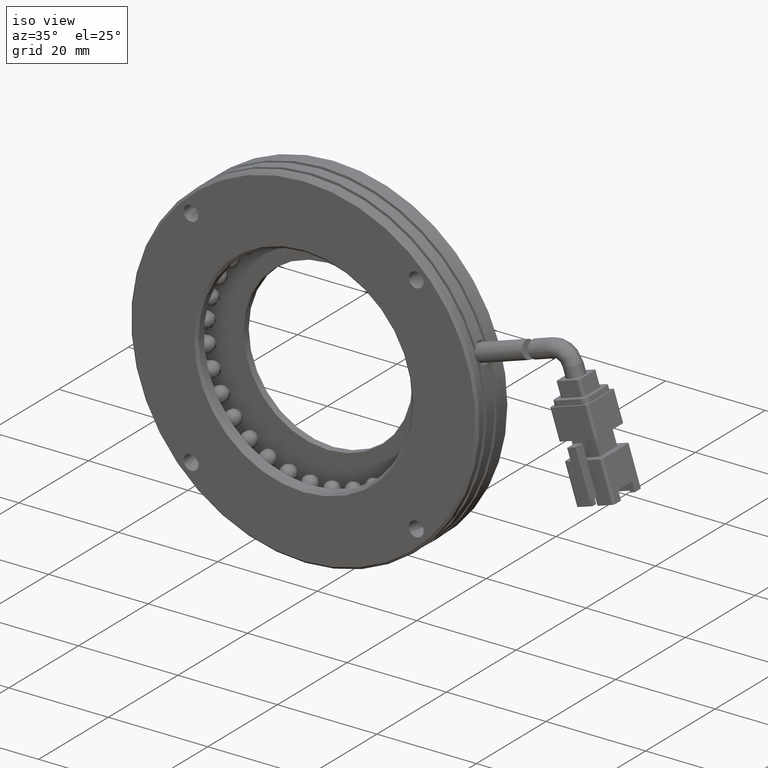
[diagram: clean part render]
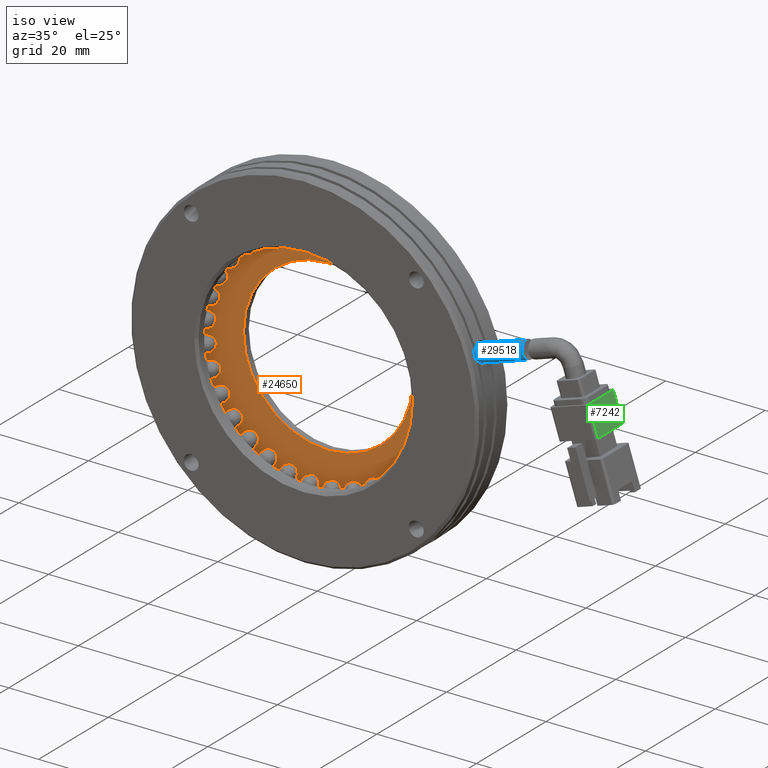
[diagram: same view with three faces highlighted in distinct colors, each labeled with its STEP entity id]
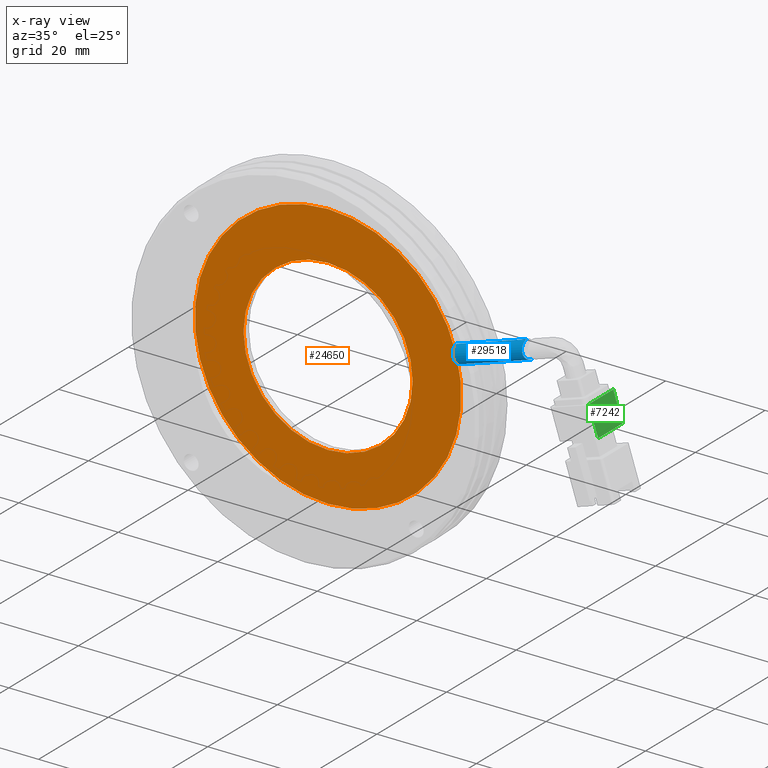
[diagram: x-ray of the same camera — body ghosted, the three highlighted faces saturated]
A machine part, iso view with three faces highlighted in distinct colors.
The next image is the same camera in x-ray (body ghosted, the three faces saturated) — at least one of them is partly hidden behind the body in this view.
Their STEP definitions:

[orange] entity #24650 — the highlighted planar face has unit normal (0, 1, 0).
#608 = EDGE_LOOP ( 'NONE', ( #2378, #2992 ) ) ;
#2374 = EDGE_CURVE ( 'NONE', #39780, #20441, #25973, .T. ) ;
#2378 = ORIENTED_EDGE ( 'NONE', *, *, #37890, .F. ) ;
#2992 = ORIENTED_EDGE ( 'NONE', *, *, #28571, .F. ) ;
#4159 = EDGE_LOOP ( 'NONE', ( #12095, #36094 ) ) ;
#4521 = VERTEX_POINT ( 'NONE', #29753 ) ;
#5739 = AXIS2_PLACEMENT_3D ( 'NONE', #24487, #5831, #27602 ) ;
#5831 = DIRECTION ( 'NONE',  ( 0.0000000000000000000, 1.000000000000000000, 0.0000000000000000000 ) ) ;
#10106 = CARTESIAN_POINT ( 'NONE',  ( -5.709292144904340600, 11.26020291540426400, 16.99999999999997900 ) ) ;
#11945 = PLANE ( 'NONE',  #5739 ) ;
#12095 = ORIENTED_EDGE ( 'NONE', *, *, #2374, .T. ) ;
#12485 = DIRECTION ( 'NONE',  ( 0.0000000000000000000, 1.000000000000000000, 0.0000000000000000000 ) ) ;
#12673 = CARTESIAN_POINT ( 'NONE',  ( -5.709292144904342300, 11.26020291540426400, -2.081668171172168500E-014 ) ) ;
#14957 = CARTESIAN_POINT ( 'NONE',  ( -5.709292144904342300, 11.26020291540426400, -2.081668171172168500E-014 ) ) ;
#15790 = DIRECTION ( 'NONE',  ( 0.0000000000000000000, 0.0000000000000000000, -1.000000000000000000 ) ) ;
#16258 = CARTESIAN_POINT ( 'NONE',  ( -5.709292144904338800, 11.26020291540426400, 26.79999999999997900 ) ) ;
#16891 = AXIS2_PLACEMENT_3D ( 'NONE', #31146, #12485, #34284 ) ;
#17404 = CIRCLE ( 'NONE', #39424, 17.00000000000000000 ) ;
#18082 = DIRECTION ( 'NONE',  ( 0.0000000000000000000, 0.0000000000000000000, -1.000000000000000000 ) ) ;
#20441 = VERTEX_POINT ( 'NONE', #10106 ) ;
#20762 = EDGE_CURVE ( 'NONE', #20441, #39780, #17404, .T. ) ;
#21658 = DIRECTION ( 'NONE',  ( 0.0000000000000000000, 0.0000000000000000000, -1.000000000000000000 ) ) ;
#21782 = DIRECTION ( 'NONE',  ( 0.0000000000000000000, 1.000000000000000000, 0.0000000000000000000 ) ) ;
#22052 = CARTESIAN_POINT ( 'NONE',  ( -5.709292144904342300, 11.26020291540426400, -2.081668171172168500E-014 ) ) ;
#23281 = VERTEX_POINT ( 'NONE', #16258 ) ;
#24473 = FACE_OUTER_BOUND ( 'NONE', #608, .T. ) ;
#24487 = CARTESIAN_POINT ( 'NONE',  ( -29.70929214490434600, 11.26020291540426400, -2.081668171172168500E-014 ) ) ;
#24650 = ADVANCED_FACE ( 'NONE', ( #24473, #25460 ), #11945, .F. ) ;
#25460 = FACE_BOUND ( 'NONE', #4159, .T. ) ;
#25973 = CIRCLE ( 'NONE', #31549, 17.00000000000000000 ) ;
#27602 = DIRECTION ( 'NONE',  ( 0.0000000000000000000, -0.0000000000000000000, 1.000000000000000000 ) ) ;
#28571 = EDGE_CURVE ( 'NONE', #23281, #4521, #36526, .T. ) ;
#29753 = CARTESIAN_POINT ( 'NONE',  ( -5.709292144904342300, 11.26020291540426400, -26.80000000000002200 ) ) ;
#31146 = CARTESIAN_POINT ( 'NONE',  ( -5.709292144904342300, 11.26020291540426400, -2.081668171172168500E-014 ) ) ;
#31544 = CARTESIAN_POINT ( 'NONE',  ( -5.709292144904342300, 11.26020291540426400, -17.00000000000002100 ) ) ;
#31549 = AXIS2_PLACEMENT_3D ( 'NONE', #22052, #21782, #21658 ) ;
#33033 = CIRCLE ( 'NONE', #16891, 26.80000000000000100 ) ;
#34284 = DIRECTION ( 'NONE',  ( 0.0000000000000000000, 0.0000000000000000000, -1.000000000000000000 ) ) ;
#34458 = DIRECTION ( 'NONE',  ( 0.0000000000000000000, 1.000000000000000000, 0.0000000000000000000 ) ) ;
#36094 = ORIENTED_EDGE ( 'NONE', *, *, #20762, .T. ) ;
#36526 = CIRCLE ( 'NONE', #39033, 26.80000000000000100 ) ;
#36742 = DIRECTION ( 'NONE',  ( 0.0000000000000000000, 1.000000000000000000, 0.0000000000000000000 ) ) ;
#37890 = EDGE_CURVE ( 'NONE', #4521, #23281, #33033, .T. ) ;
#39033 = AXIS2_PLACEMENT_3D ( 'NONE', #12673, #34458, #15790 ) ;
#39424 = AXIS2_PLACEMENT_3D ( 'NONE', #14957, #36742, #18082 ) ;
#39780 = VERTEX_POINT ( 'NONE', #31544 ) ;

[blue] entity #29518 — the highlighted cylindrical surface (edge-blend (fillet) strip) has radius 1.75 mm, axis along (-0.9511, -0, -0.309).
#221 = CARTESIAN_POINT ( 'NONE',  ( 36.72435600610577900, 6.510318586919435500, 13.54560407926691900 ) ) ;
#340 = CARTESIAN_POINT ( 'NONE',  ( 36.33903773791102800, 8.260202915404274600, 15.50238946504246900 ) ) ;
#3137 = ORIENTED_EDGE ( 'NONE', *, *, #5247, .T. ) ;
#3337 = CARTESIAN_POINT ( 'NONE',  ( 36.60175035152810400, 6.521611991579599800, 13.98946060272385900 ) ) ;
#5247 = EDGE_CURVE ( 'NONE', #19025, #35095, #23647, .T. ) ;
#5968 = ORIENTED_EDGE ( 'NONE', *, *, #15508, .F. ) ;
#6035 = EDGE_CURVE ( 'NONE', #8239, #19025, #15686, .T. ) ;
#6301 = CARTESIAN_POINT ( 'NONE',  ( 37.35238691673917100, 7.806023278165579200, 12.21052284659716300 ) ) ;
#6437 = CARTESIAN_POINT ( 'NONE',  ( 36.52657186722137800, 6.599357825048467200, 14.31553269713498700 ) ) ;
#6508 = AXIS2_PLACEMENT_3D ( 'NONE', #20636, #23653, #39396 ) ;
#7446 = VECTOR ( 'NONE', #21072, 1000.000000000000100 ) ;
#7602 = LINE ( 'NONE', #37968, #39697 ) ;
#7743 = B_SPLINE_CURVE_WITH_KNOTS ( 'NONE', 3,
 ( #21805, #12422, #24970, #6301, #28065, #9444, #31202, #12534, #34334, #15670, #37459, #18783, #221, #21936, #3337, #25105, #6437, #28199, #9574, #31350, #12676, #34461, #15797, #37596, #18913, #340 ),
 .UNSPECIFIED., .F., .F.,
 ( 4, 2, 2, 2, 2, 2, 2, 2, 2, 2, 2, 2, 4 ),
 ( 0.005490571999675049900, 0.005833718808239137000, 0.006176865616803224100, 0.006520012425367311200, 0.006863159233931397400, 0.007549452851059569900, 0.008235746468187742400, 0.008578893276751825200, 0.008922040085315909700, 0.009608333702444077000, 0.009951480511008161500, 0.01029462731957224600, 0.01098092093670041700 ),
 .UNSPECIFIED. ) ;
#8239 = VERTEX_POINT ( 'NONE', #35651 ) ;
#9444 = CARTESIAN_POINT ( 'NONE',  ( 37.28371489368260000, 7.483322079435509100, 12.31608354598104100 ) ) ;
#9574 = CARTESIAN_POINT ( 'NONE',  ( 36.43177932673596300, 6.859428774538495000, 14.82147484758573900 ) ) ;
#12422 = CARTESIAN_POINT ( 'NONE',  ( 37.38529353114712700, 8.144126648416756700, 12.16222079472872900 ) ) ;
#12534 = CARTESIAN_POINT ( 'NONE',  ( 37.18831928160720000, 7.193327799290734100, 12.47478184292934400 ) ) ;
#12676 = CARTESIAN_POINT ( 'NONE',  ( 36.38500504170504300, 7.190315544294240800, 15.13831572019557600 ) ) ;
#13039 = ORIENTED_EDGE ( 'NONE', *, *, #20286, .T. ) ;
#13913 = CARTESIAN_POINT ( 'NONE',  ( 22.82240334395002900, 8.260202915404274600, 9.270509831248427100 ) ) ;
#14681 = CARTESIAN_POINT ( 'NONE',  ( 41.30275392969692700, 8.260202915404274600, 17.11519862226390700 ) ) ;
#15508 = EDGE_CURVE ( 'NONE', #15520, #35095, #7602, .T. ) ;
#15520 = VERTEX_POINT ( 'NONE', #16322 ) ;
#15670 = CARTESIAN_POINT ( 'NONE',  ( 37.03719705705669400, 6.862651531761057000, 12.75622790100125700 ) ) ;
#15686 = LINE ( 'NONE', #14681, #7446 ) ;
#15797 = CARTESIAN_POINT ( 'NONE',  ( 36.36077572499959100, 7.482101088893479400, 15.32195030346228200 ) ) ;
#16322 = CARTESIAN_POINT ( 'NONE',  ( 37.38529353114712000, 8.260202915404272900, 12.16222079472872500 ) ) ;
#17035 = DIRECTION ( 'NONE',  ( 0.3090169943749487800, 0.0000000000000000000, -0.9510565162951533100 ) ) ;
#18783 = CARTESIAN_POINT ( 'NONE',  ( 36.79792555005476400, 6.556725872196850900, 13.32644586666193700 ) ) ;
#18913 = CARTESIAN_POINT ( 'NONE',  ( 36.33903773791102100, 8.028106546004591900, 15.50238946504246800 ) ) ;
#19025 = VERTEX_POINT ( 'NONE', #34836 ) ;
#19554 = EDGE_LOOP ( 'NONE', ( #13039, #40009, #3137, #5968 ) ) ;
#20286 = EDGE_CURVE ( 'NONE', #15520, #8239, #7743, .T. ) ;
#20636 = CARTESIAN_POINT ( 'NONE',  ( 41.84353366985308800, 8.260202915404274600, 15.45084971874738900 ) ) ;
#21072 = DIRECTION ( 'NONE',  ( -0.9510565162951533100, -5.175640566343689800E-031, -0.3090169943749482300 ) ) ;
#21805 = CARTESIAN_POINT ( 'NONE',  ( 37.38529353114712000, 8.260202915404272900, 12.16222079472872500 ) ) ;
#21936 = CARTESIAN_POINT ( 'NONE',  ( 36.63081237381874200, 6.510145412648808100, 13.87670563019659500 ) ) ;
#23226 = CYLINDRICAL_SURFACE ( 'NONE', #6508, 1.749999999999998900 ) ;
#23647 = CIRCLE ( 'NONE', #33827, 1.749999999999999800 ) ;
#23653 = DIRECTION ( 'NONE',  ( -0.9510565162951534200, -5.175640566343689800E-031, -0.3090169943749482300 ) ) ;
#24970 = CARTESIAN_POINT ( 'NONE',  ( 37.37847244659075600, 8.030119444077746100, 12.17202583018128200 ) ) ;
#25105 = CARTESIAN_POINT ( 'NONE',  ( 36.54979637701208600, 6.566301789970987500, 14.20835022921537100 ) ) ;
#25117 = CARTESIAN_POINT ( 'NONE',  ( 23.36318308410618600, 8.260202915404274600, 7.606160927731910000 ) ) ;
#25633 = DIRECTION ( 'NONE',  ( -0.9510565162951533100, -5.175640566343689800E-031, -0.3090169943749482300 ) ) ;
#28065 = CARTESIAN_POINT ( 'NONE',  ( 37.33280410560985300, 7.694751361463382900, 12.23971285089880600 ) ) ;
#28199 = CARTESIAN_POINT ( 'NONE',  ( 36.46348452523619700, 6.731159768639686000, 14.62977999914818400 ) ) ;
#29518 = ADVANCED_FACE ( 'NONE', ( #34425 ), #23226, .T. ) ;
#31202 = CARTESIAN_POINT ( 'NONE',  ( 37.25439642110107700, 7.383101340561889700, 12.36297491285675100 ) ) ;
#31350 = CARTESIAN_POINT ( 'NONE',  ( 36.39515622102742000, 7.102460475205196700, 15.06565838354307000 ) ) ;
#33827 = AXIS2_PLACEMENT_3D ( 'NONE', #13913, #35698, #17035 ) ;
#34334 = CARTESIAN_POINT ( 'NONE',  ( 37.15143961899831000, 7.103839794888062700, 12.54002474285201900 ) ) ;
#34425 = FACE_OUTER_BOUND ( 'NONE', #19554, .T. ) ;
#34461 = CARTESIAN_POINT ( 'NONE',  ( 36.36783382165692300, 7.379524593304807900, 15.26626950785594200 ) ) ;
#34836 = CARTESIAN_POINT ( 'NONE',  ( 22.28162360379386800, 8.260202915404274600, 10.93485873476494800 ) ) ;
#35095 = VERTEX_POINT ( 'NONE', #25117 ) ;
#35651 = CARTESIAN_POINT ( 'NONE',  ( 36.33903773791102800, 8.260202915404274600, 15.50238946504246900 ) ) ;
#35698 = DIRECTION ( 'NONE',  ( 0.9510565162951534200, 5.175640566343689800E-031, 0.3090169943749482300 ) ) ;
#37459 = CARTESIAN_POINT ( 'NONE',  ( 36.95354841861981000, 6.731993661922310000, 12.93387012195711700 ) ) ;
#37596 = CARTESIAN_POINT ( 'NONE',  ( 36.34429491659418700, 7.799156112230766900, 15.45534026852193000 ) ) ;
#37968 = CARTESIAN_POINT ( 'NONE',  ( 42.38431341000924100, 8.260202915404274600, 13.78650081523087100 ) ) ;
#39396 = DIRECTION ( 'NONE',  ( 0.3090169943749469000, 0.0000000000000000000, -0.9510565162951537500 ) ) ;
#39697 = VECTOR ( 'NONE', #25633, 1000.000000000000100 ) ;
#40009 = ORIENTED_EDGE ( 'NONE', *, *, #6035, .T. ) ;

[green] entity #7242 — the highlighted planar face has unit normal (-0.9511, -0, -0.309).
#457 = LINE ( 'NONE', #3106, #32564 ) ;
#3106 = CARTESIAN_POINT ( 'NONE',  ( 51.28208223329370700, 11.76020291540427600, 9.054460032715649500 ) ) ;
#3941 = CARTESIAN_POINT ( 'NONE',  ( 51.28208223329370700, 4.760202915404276400, 9.054460032715649500 ) ) ;
#4968 = VERTEX_POINT ( 'NONE', #34907 ) ;
#5658 = VERTEX_POINT ( 'NONE', #35129 ) ;
#6192 = DIRECTION ( 'NONE',  ( 0.3090169943749484500, 1.104552433485933500E-016, -0.9510565162951532000 ) ) ;
#7024 = ORIENTED_EDGE ( 'NONE', *, *, #10896, .F. ) ;
#7057 = DIRECTION ( 'NONE',  ( -0.3090169943749484500, -1.104552433485933500E-016, 0.9510565162951532000 ) ) ;
#7242 = ADVANCED_FACE ( 'NONE', ( #20903 ), #22670, .F. ) ;
#7924 = EDGE_CURVE ( 'NONE', #5658, #14495, #30516, .T. ) ;
#9396 = LINE ( 'NONE', #34793, #17626 ) ;
#10896 = EDGE_CURVE ( 'NONE', #4968, #5658, #20451, .T. ) ;
#11936 = ORIENTED_EDGE ( 'NONE', *, *, #36437, .F. ) ;
#11949 = ORIENTED_EDGE ( 'NONE', *, *, #7924, .F. ) ;
#12982 = DIRECTION ( 'NONE',  ( 1.392523512205443700E-016, -1.000000000000000000, -1.854886507106402700E-016 ) ) ;
#14495 = VERTEX_POINT ( 'NONE', #36549 ) ;
#16532 = DIRECTION ( 'NONE',  ( -0.9510565162951533100, -2.632660169627703500E-017, -0.3090169943749485100 ) ) ;
#17626 = VECTOR ( 'NONE', #12982, 1000.000000000000000 ) ;
#19449 = VECTOR ( 'NONE', #7057, 1000.000000000000100 ) ;
#20030 = CARTESIAN_POINT ( 'NONE',  ( 51.28208223329370700, 4.760202915404276400, 9.054460032715649500 ) ) ;
#20451 = LINE ( 'NONE', #3941, #19449 ) ;
#20903 = FACE_OUTER_BOUND ( 'NONE', #34299, .T. ) ;
#22670 = PLANE ( 'NONE',  #27920 ) ;
#25951 = ORIENTED_EDGE ( 'NONE', *, *, #32647, .F. ) ;
#27920 = AXIS2_PLACEMENT_3D ( 'NONE', #35218, #16532, #38334 ) ;
#30516 = LINE ( 'NONE', #20030, #38782 ) ;
#31391 = VERTEX_POINT ( 'NONE', #36614 ) ;
#32564 = VECTOR ( 'NONE', #6192, 1000.000000000000100 ) ;
#32647 = EDGE_CURVE ( 'NONE', #14495, #31391, #457, .T. ) ;
#34299 = EDGE_LOOP ( 'NONE', ( #25951, #11949, #7024, #11936 ) ) ;
#34793 = CARTESIAN_POINT ( 'NONE',  ( 53.13618419954338600, 4.760202915404276400, 3.348120934944734300 ) ) ;
#34907 = CARTESIAN_POINT ( 'NONE',  ( 53.13618419954339300, 4.760202915404277300, 3.348120934944726700 ) ) ;
#35129 = CARTESIAN_POINT ( 'NONE',  ( 51.28208223329370700, 4.760202915404276400, 9.054460032715649500 ) ) ;
#35218 = CARTESIAN_POINT ( 'NONE',  ( 51.28208223329370700, 4.760202915404276400, 9.054460032715649500 ) ) ;
#36437 = EDGE_CURVE ( 'NONE', #31391, #4968, #9396, .T. ) ;
#36549 = CARTESIAN_POINT ( 'NONE',  ( 51.28208223329370700, 11.76020291540427600, 9.054460032715653000 ) ) ;
#36614 = CARTESIAN_POINT ( 'NONE',  ( 53.13618419954340100, 11.76020291540427800, 3.348120934944729000 ) ) ;
#38334 = DIRECTION ( 'NONE',  ( 5.917063340768713900E-017, -1.000000000000000000, -9.691381161735665800E-017 ) ) ;
#38678 = DIRECTION ( 'NONE',  ( -5.917063340768713900E-017, 1.000000000000000000, 9.691381161735665800E-017 ) ) ;
#38782 = VECTOR ( 'NONE', #38678, 1000.000000000000000 ) ;